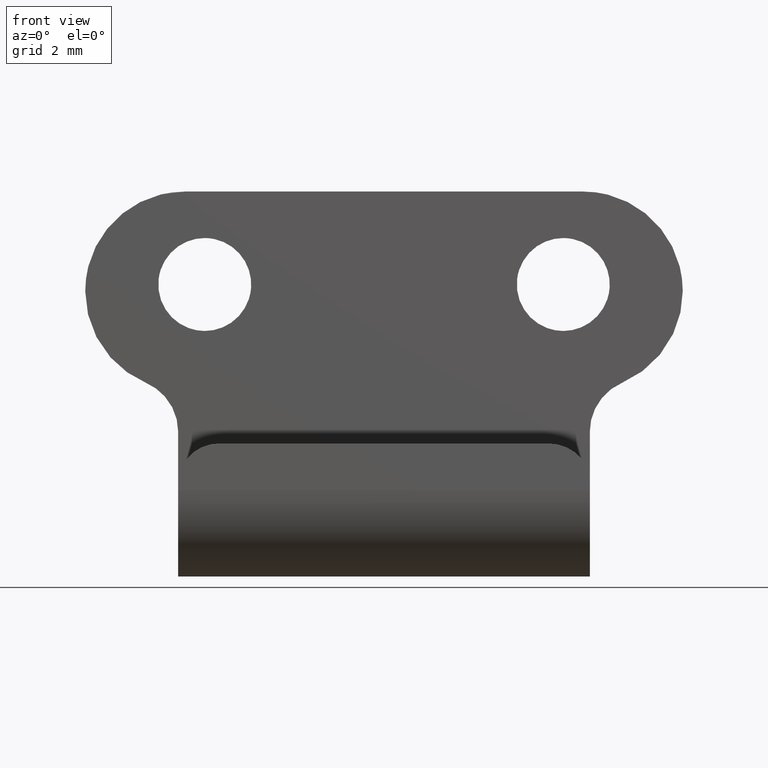
[diagram: clean part render]
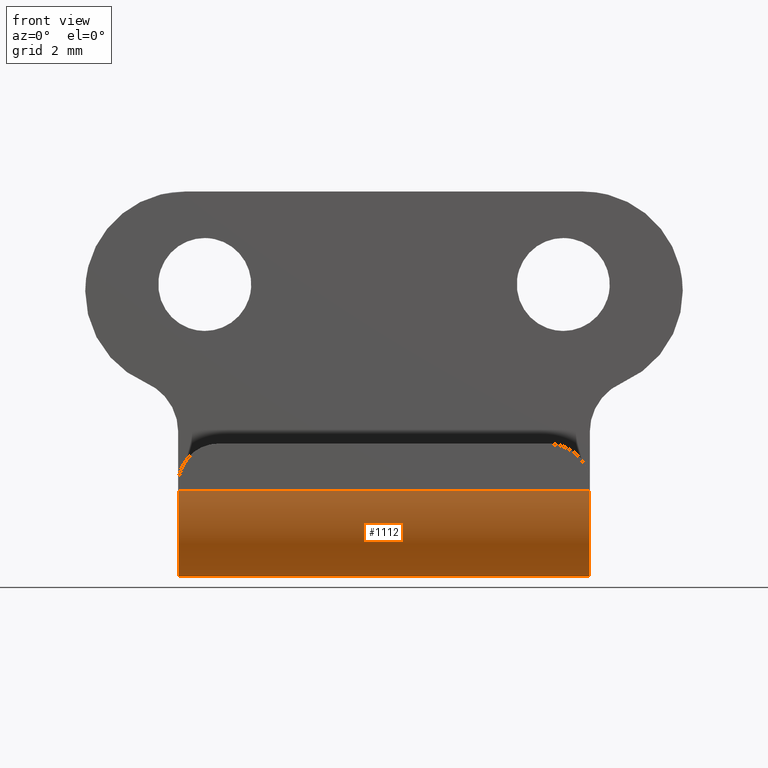
[diagram: same view with one face highlighted and labeled with its STEP entity id]
A machine part, front view. The second image highlights one B-rep face of the part: STEP entity #1112.
In plain terms, the highlighted face is a freeform B-spline surface patch.
Its self-contained STEP definition (entity closure, byte-faithful):
#771=CARTESIAN_POINT('',(-7.750000000000000,-6.500000000000000,-11.250000000000000));
#772=VERTEX_POINT('',#771);
#809=CARTESIAN_POINT('',(-7.750000000000000,0.0,-11.250000000000000));
#810=VERTEX_POINT('',#809);
#816=CARTESIAN_POINT('',(-7.750000000000000,0.0,-11.250000000000000));
#817=CARTESIAN_POINT('',(-7.750000000000001,0.0,-14.500000000000004));
#818=CARTESIAN_POINT('',(-7.750000000000000,-3.250000000000000,-14.500000000000000));
#819=CARTESIAN_POINT('',(-7.750000000000001,-6.500000000000000,-14.500000000000004));
#820=CARTESIAN_POINT('',(-7.750000000000000,-6.500000000000000,-11.250000000000000));
#828=(BOUNDED_CURVE()B_SPLINE_CURVE(2,(#816,#817,#818,#819,#820),.UNSPECIFIED.,.F.,.U.)B_SPLINE_CURVE_WITH_KNOTS((3,2,3),(0.0,0.500000000000000,1.0),.UNSPECIFIED.)CURVE()GEOMETRIC_REPRESENTATION_ITEM()RATIONAL_B_SPLINE_CURVE((1.0,0.707106781186547,1.0,0.707106781186547,1.0))REPRESENTATION_ITEM(''));
#829=EDGE_CURVE('',#810,#772,#828,.T.);
#953=CARTESIAN_POINT('',(7.750000000000000,-6.500000000000000,-11.250000000000000));
#954=VERTEX_POINT('',#953);
#960=CARTESIAN_POINT('',(7.750000000000000,0.0,-11.250000000000000));
#961=VERTEX_POINT('',#960);
#962=CARTESIAN_POINT('',(7.750000000000000,0.0,-11.250000000000000));
#963=CARTESIAN_POINT('',(7.750000000000001,0.0,-14.500000000000004));
#964=CARTESIAN_POINT('',(7.750000000000000,-3.250000000000000,-14.500000000000000));
#965=CARTESIAN_POINT('',(7.750000000000001,-6.500000000000000,-14.500000000000004));
#966=CARTESIAN_POINT('',(7.750000000000000,-6.500000000000000,-11.250000000000000));
#974=(BOUNDED_CURVE()B_SPLINE_CURVE(2,(#962,#963,#964,#965,#966),.UNSPECIFIED.,.F.,.U.)B_SPLINE_CURVE_WITH_KNOTS((3,2,3),(0.0,0.500000000000000,1.0),.UNSPECIFIED.)CURVE()GEOMETRIC_REPRESENTATION_ITEM()RATIONAL_B_SPLINE_CURVE((1.0,0.707106781186547,1.0,0.707106781186547,1.0))REPRESENTATION_ITEM(''));
#975=EDGE_CURVE('',#961,#954,#974,.T.);
#1076=CARTESIAN_POINT('',(7.750000000000000,-6.500000000000000,-11.250000000000000));
#1077=CARTESIAN_POINT('',(-7.750000000000000,-6.500000000000000,-11.250000000000000));
#1078=QUASI_UNIFORM_CURVE('',1,(#1076,#1077),.UNSPECIFIED.,.F.,.U.);
#1079=EDGE_CURVE('',#954,#772,#1078,.T.);
#1084=CARTESIAN_POINT('',(8.137500000000001,-6.498886306170560,-11.164924917999411));
#1085=CARTESIAN_POINT('',(-8.147187500000001,-6.498886306170560,-11.164924917999411));
#1086=CARTESIAN_POINT('',(8.137500000000001,-6.588536736739433,-14.588536736739426));
#1087=CARTESIAN_POINT('',(-8.147187500000001,-6.588536736739433,-14.588536736739426));
#1088=CARTESIAN_POINT('',(8.137500000000001,-3.164924917999416,-14.498886306170560));
#1089=CARTESIAN_POINT('',(-8.147187500000001,-3.164924917999416,-14.498886306170560));
#1090=CARTESIAN_POINT('',(8.137500000000001,0.258686900740601,-14.409235875601695));
#1091=CARTESIAN_POINT('',(-8.147187500000001,0.258686900740601,-14.409235875601695));
#1092=CARTESIAN_POINT('',(8.137500000000001,-0.010018665367333,-10.995007938884511));
#1093=CARTESIAN_POINT('',(-8.147187500000001,-0.010018665367333,-10.995007938884511));
#1101=(BOUNDED_SURFACE()B_SPLINE_SURFACE(1,2,((#1084,#1086,#1088,#1090,#1092),(#1085,#1087,#1089,#1091,#1093)),.UNSPECIFIED.,.F.,.F.,.U.)B_SPLINE_SURFACE_WITH_KNOTS((2,2),(3,2,3),(0.0,16.284687500000000),(0.0,5.585240777568869,11.170481555137741),.UNSPECIFIED.)GEOMETRIC_REPRESENTATION_ITEM()RATIONAL_B_SPLINE_SURFACE(((1.0,0.688354575693754,1.0,0.688354575693754,1.0),(1.0,0.688354575693754,1.0,0.688354575693754,1.0)))REPRESENTATION_ITEM('')SURFACE());
#1102=ORIENTED_EDGE('',*,*,#829,.F.);
#1103=CARTESIAN_POINT('',(7.750000000000000,0.0,-11.250000000000000));
#1104=CARTESIAN_POINT('',(-7.750000000000000,0.0,-11.250000000000000));
#1105=QUASI_UNIFORM_CURVE('',1,(#1103,#1104),.UNSPECIFIED.,.F.,.U.);
#1106=EDGE_CURVE('',#961,#810,#1105,.T.);
#1107=ORIENTED_EDGE('',*,*,#1106,.F.);
#1108=ORIENTED_EDGE('',*,*,#975,.T.);
#1109=ORIENTED_EDGE('',*,*,#1079,.T.);
#1110=EDGE_LOOP('',(#1102,#1107,#1108,#1109));
#1111=FACE_OUTER_BOUND('',#1110,.T.);
#1112=ADVANCED_FACE('',(#1111),#1101,.T.);